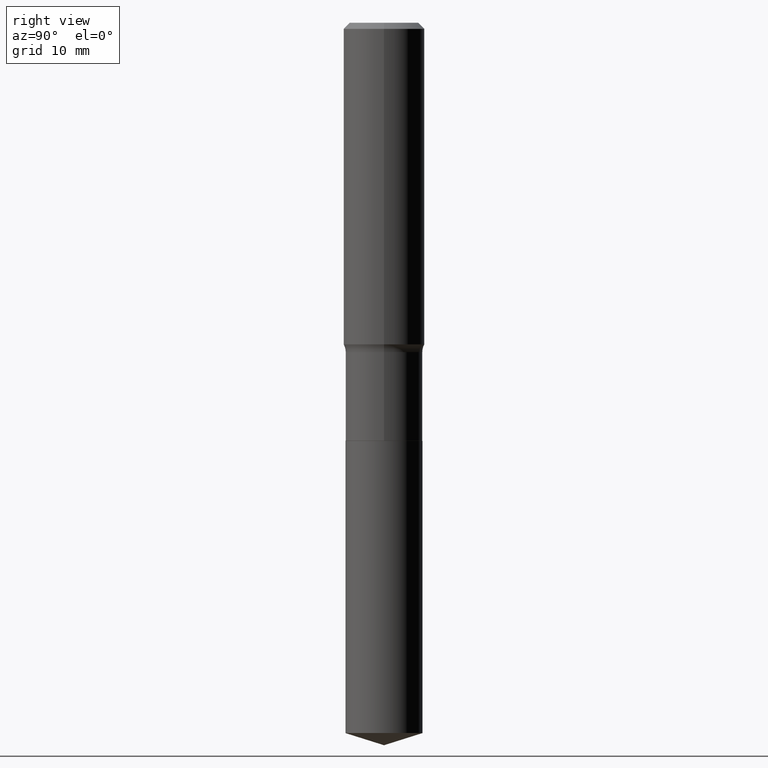
[diagram: clean part render]
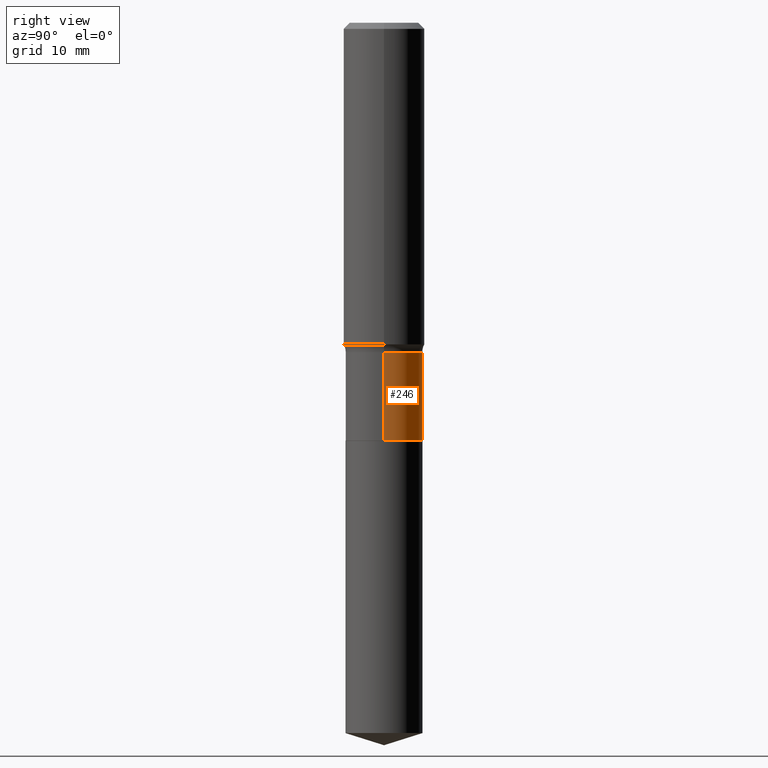
[diagram: same view with one face highlighted and labeled with its STEP entity id]
A machine part, right view. The second image highlights one B-rep face of the part: STEP entity #246.
In plain terms, the highlighted cylindrical surface (partial cylindrical patch) has radius 4.7498 mm, axis along (-0, 0, 1).
Its self-contained STEP definition (entity closure, byte-faithful):
#1 = DIRECTION ( 'NONE',  ( -2.445468806185136597E-29, 3.491481338843145583E-15, 1.000000000000000000 ) ) ;
#2 = CARTESIAN_POINT ( 'NONE',  ( -0.1869999999999999996, -4.998547566380161442E-15, -2.027000000000000135 ) ) ;
#3 = VERTEX_POINT ( 'NONE', #422 ) ;
#15 = AXIS2_PLACEMENT_3D ( 'NONE', #197, #381, #356 ) ;
#44 = FACE_OUTER_BOUND ( 'NONE', #316, .T. ) ;
#66 = CYLINDRICAL_SURFACE ( 'NONE', #15, 0.1869999999999999718 ) ;
#89 = AXIS2_PLACEMENT_3D ( 'NONE', #296, #1, #267 ) ;
#104 = VECTOR ( 'NONE', #361, 39.37007874015748143 ) ;
#137 = DIRECTION ( 'NONE',  ( -2.445468806185136597E-29, 3.491481338843145583E-15, 1.000000000000000000 ) ) ;
#139 = CARTESIAN_POINT ( 'NONE',  ( 0.1869999999999999718, -1.305814020727331607E-15, 9.118450570738398307E-30 ) ) ;
#140 = CARTESIAN_POINT ( 'NONE',  ( 0.1869999999999999996, -8.383046694562388303E-15, -2.027000000000000135 ) ) ;
#145 = CIRCLE ( 'NONE', #89, 0.1869999999999999440 ) ;
#153 = ORIENTED_EDGE ( 'NONE', *, *, #300, .F. ) ;
#187 = EDGE_CURVE ( 'NONE', #189, #3, #375, .T. ) ;
#189 = VERTEX_POINT ( 'NONE', #2 ) ;
#197 = CARTESIAN_POINT ( 'NONE',  ( 0.000000000000000000, 0.000000000000000000, 0.000000000000000000 ) ) ;
#236 = EDGE_CURVE ( 'NONE', #413, #189, #397, .T. ) ;
#246 = ADVANCED_FACE ( 'NONE', ( #44 ), #66, .T. ) ;
#255 = ORIENTED_EDGE ( 'NONE', *, *, #236, .T. ) ;
#267 = DIRECTION ( 'NONE',  ( 1.000000000000000000, -6.982962677686267499E-15, 0.000000000000000000 ) ) ;
#288 = ORIENTED_EDGE ( 'NONE', *, *, #187, .T. ) ;
#291 = CARTESIAN_POINT ( 'NONE',  ( 0.1869999999999999440, -6.883106311395371695E-15, -1.597399999999999709 ) ) ;
#294 = VECTOR ( 'NONE', #307, 39.37007874015748143 ) ;
#296 = CARTESIAN_POINT ( 'NONE',  ( 3.906391871000136996E-29, -5.577292290668039694E-15, -1.597399999999999709 ) ) ;
#300 = EDGE_CURVE ( 'NONE', #413, #474, #446, .T. ) ;
#307 = DIRECTION ( 'NONE',  ( -2.445468806185136877E-29, 3.491481338843145188E-15, 1.000000000000000000 ) ) ;
#316 = EDGE_LOOP ( 'NONE', ( #255, #288, #438, #153 ) ) ;
#339 = CARTESIAN_POINT ( 'NONE',  ( 4.956965270137271581E-29, -7.077232673835056302E-15, -2.027000000000000135 ) ) ;
#356 = DIRECTION ( 'NONE',  ( 1.000000000000000000, -6.982962677686266711E-15, 4.876176775795935793E-29 ) ) ;
#361 = DIRECTION ( 'NONE',  ( -2.445468806185136877E-29, 3.491481338843145188E-15, 1.000000000000000000 ) ) ;
#375 = LINE ( 'NONE', #431, #104 ) ;
#381 = DIRECTION ( 'NONE',  ( -2.445468806185136597E-29, 3.491481338843145583E-15, 1.000000000000000000 ) ) ;
#397 = CIRCLE ( 'NONE', #487, 0.1869999999999999996 ) ;
#398 = EDGE_CURVE ( 'NONE', #474, #3, #145, .T. ) ;
#413 = VERTEX_POINT ( 'NONE', #140 ) ;
#422 = CARTESIAN_POINT ( 'NONE',  ( -0.1869999999999999440, -4.998547566380161442E-15, -1.597399999999999709 ) ) ;
#431 = CARTESIAN_POINT ( 'NONE',  ( -0.1869999999999999718, 1.328714915871387147E-15, -9.198408618776671699E-30 ) ) ;
#438 = ORIENTED_EDGE ( 'NONE', *, *, #398, .F. ) ;
#446 = LINE ( 'NONE', #139, #294 ) ;
#451 = DIRECTION ( 'NONE',  ( 1.000000000000000000, -6.982962677686265133E-15, 0.000000000000000000 ) ) ;
#474 = VERTEX_POINT ( 'NONE', #291 ) ;
#487 = AXIS2_PLACEMENT_3D ( 'NONE', #339, #137, #451 ) ;